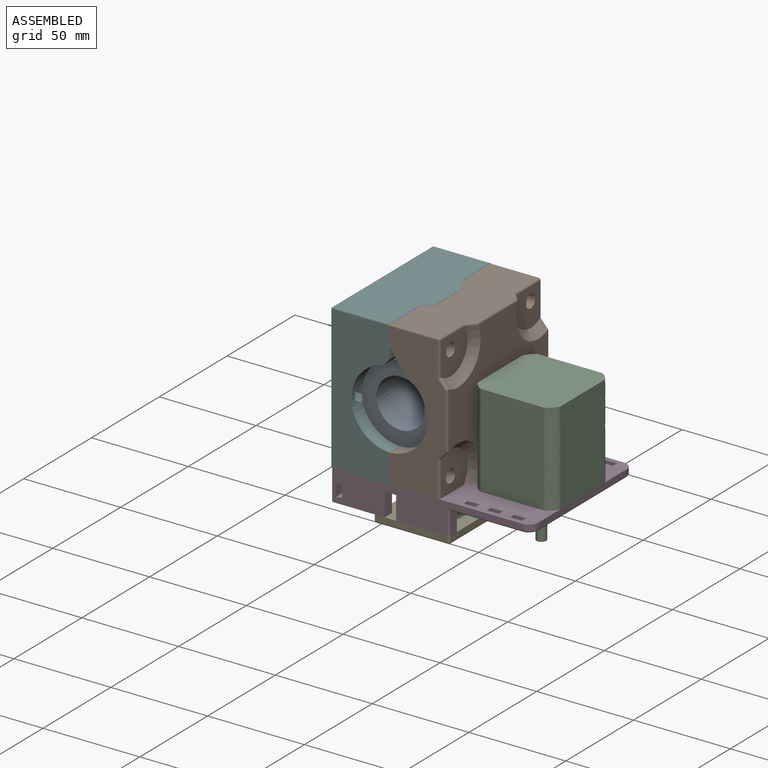
[diagram: assembled view]
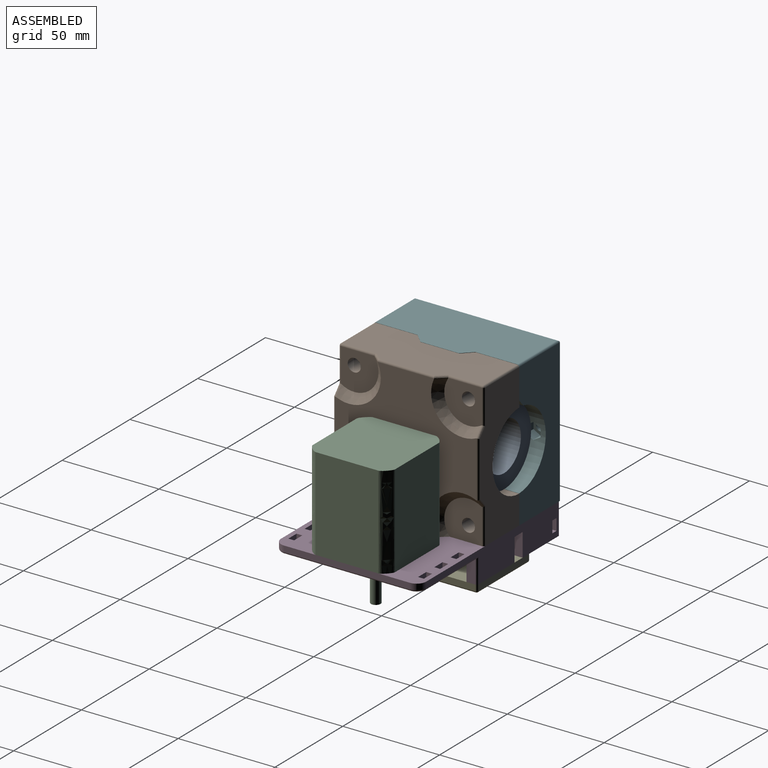
[diagram: assembled view, second angle]
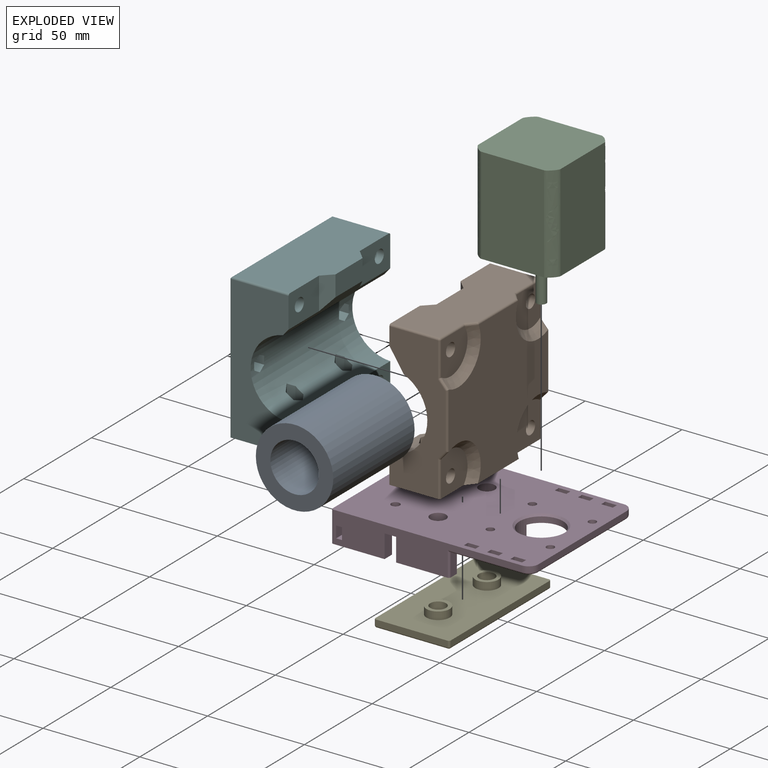
[diagram: exploded view]
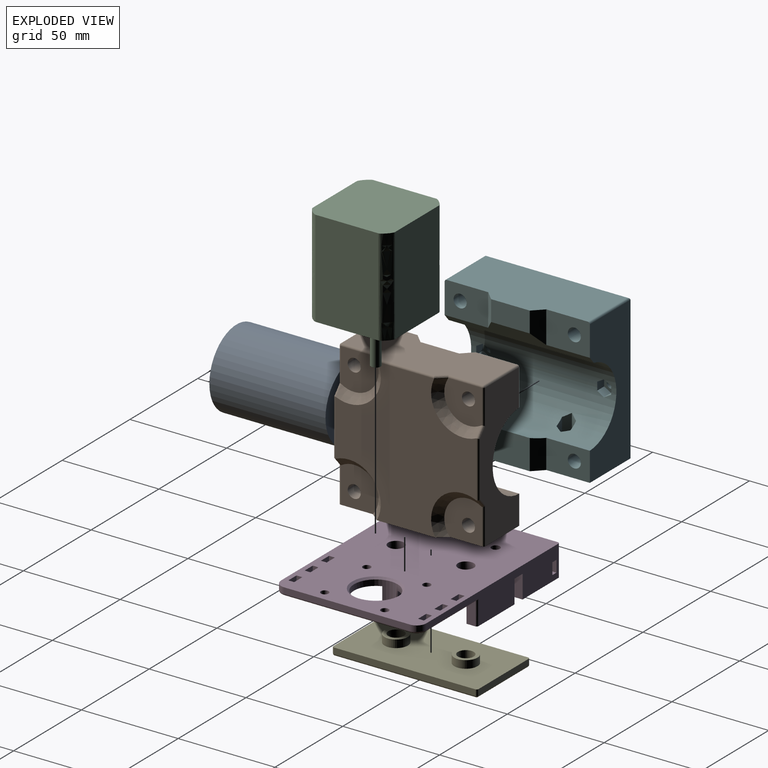
[diagram: exploded view, second angle]
ASSEMBLY  parts=6 mates=5
PART A: 4 faces, bbox 40x60x40 mm
  f0: cylinder r=12.5mm len=60mm, axis (0,1,0), area 4712.4mm2, adj f2,f3
  f1: cylinder r=20mm len=60mm, axis (0,1,0), area 7539.8mm2, adj f2,f3
  f2: plane 40x40mm, normal (0,-1,0), area 765.8mm2, adj f0,f1
  f3: plane 40x40mm, normal (0,1,0), area 765.8mm2, adj f0,f1
PART B: 64 faces, bbox 78.1x32.8x79.9 mm
  f0: plane 74x29mm, normal (1,0,0), area 1332.1mm2, adj f6,f9,f14,f19,f20,f46,f47,f48
  f1: plane 73x29mm, normal (0,0,1), area 1830.8mm2, adj f7,f9,f10,f13,f18,f41,f51,f54
  f2: cylinder r=3.38mm len=26mm, axis (0,1,0), area 551.9mm2, adj f9,f20,f40
  f3: cylinder r=3.38mm len=26mm, axis (0,1,0), area 551.9mm2, adj f10,f39
  f4: cylinder r=3.38mm len=26mm, axis (0,1,0), area 551.9mm2, adj f14,f38
  f5: cylinder r=3.38mm len=26mm, axis (0,1,0), area 551.9mm2, adj f17,f37
  f6: cylinder r=20.1mm len=75mm, axis (1,0,0), area 3710.7mm2, adj f0,f8,f10,f11,f12,f14,f16,f17
  f7: plane 20x17.73mm, normal (0,-1,0), area 354.5mm2, adj f1,f13,f18,f20
  f8: plane 15.82x5.05mm, normal (-0.71,-0.71,0), area 108mm2, adj f6,f12,f14,f19
  f9: plane 22.5x10.13mm, normal (0,-1,0), area 196.5mm2, adj f0,f1,f2,f13,f20,f51
  f10: plane 22.5x19.81mm, normal (0,-1,0), area 409.6mm2, adj f1,f3,f6,f16,f18,f41
  f11: plane 15.82x5.05mm, normal (0.71,-0.71,0), area 108mm2, adj f6,f12,f17,f19
  f12: plane 20x15.77mm, normal (0,-1,0), area 315.3mm2, adj f6,f8,f11,f19
  f13: plane 17.73x5mm, normal (-0.71,-0.71,0), area 98.5mm2, adj f1,f7,f9,f20
  f14: plane 22.5x15.01mm, normal (0,-1,0), area 301.8mm2, adj f0,f4,f6,f8,f19
  f15: plane 74.02x73.02mm, normal (0,1,0), area 3411.8mm2, adj f19,f42,f43,f44,f45,f47,f48,f49
  f16: plane 74x29mm, normal (-1,0,0), area 1366.2mm2, adj f6,f10,f17,f19,f41,f53,f55,f57
  f17: plane 22.5x15.01mm, normal (0,-1,0), area 301.8mm2, adj f5,f6,f11,f16,f19
  f18: plane 21.59x7.6mm, normal (0.71,-0.71,0), area 146.8mm2, adj f1,f6,f7,f10,f20
  f19: plane 75.42x30.42mm, normal (0,0,-1), area 1858.4mm2, adj f0,f8,f11,f12,f14,f15,f16,f17
  f20: plane 49.14x12.94mm, normal (0,-0.84,-0.55), area 427.3mm2, adj f0,f2,f6,f7,f9,f13,f18
  f21: plane 14.77x8.08mm, normal (1,0,0), area 93.1mm2, adj f6,f22,f26,f27
  f22: plane 9.34x7.09mm, normal (0.5,0.87,0), area 69.9mm2, adj f6,f21,f23,f27
  f23: plane 9.34x7.09mm, normal (-0.5,0.87,0), area 69.9mm2, adj f6,f22,f24,f27
  f24: plane 14.77x8.08mm, normal (-1,0,0), area 93.1mm2, adj f6,f23,f25,f27
  f25: plane 23.02x8.24mm, normal (-0.5,-0.87,0), area 143.3mm2, adj f6,f24,f26,f27
  f26: plane 23.02x8.24mm, normal (0.5,-0.87,0), area 143.3mm2, adj f6,f21,f25,f27
  f27: plane 16.17x14mm, normal (0,0,1), area 116.9mm2, adj f21,f22,f23,f24,f25,f26,f36
  f28: plane 9.34x7.09mm, normal (0.5,0.87,0), area 69.9mm2, adj f6,f29,f33,f34
  f29: plane 9.34x7.09mm, normal (-0.5,0.87,0), area 69.9mm2, adj f6,f28,f30,f34
  f30: plane 14.77x8.08mm, normal (-1,0,0), area 93.1mm2, adj f6,f29,f31,f34
  f31: plane 23.02x8.24mm, normal (-0.5,-0.87,0), area 143.3mm2, adj f6,f30,f32,f34
  f32: plane 23.02x8.24mm, normal (0.5,-0.87,0), area 143.3mm2, adj f6,f31,f33,f34
  f33: plane 14.77x8.08mm, normal (1,0,0), area 93.1mm2, adj f6,f28,f32,f34
  f34: plane 16.17x14mm, normal (0,0,1), area 116.9mm2, adj f28,f29,f30,f31,f32,f33,f35
  f35: cylinder r=4.1mm len=8.2mm, axis (0,0,1), area 180.3mm2, adj f19,f34
  f36: cylinder r=4.1mm len=8.2mm, axis (0,0,1), area 180.3mm2, adj f19,f27
  f37: plane 20.54x19.54mm, normal (0,1,0), area 318.2mm2, adj f5,f19,f42,f53,f55
  f38: plane 20.54x19.54mm, normal (0,1,0), area 318.2mm2, adj f4,f19,f45,f46,f47
  f39: plane 19.54x19.54mm, normal (0,1,0), area 301.3mm2, adj f3,f43,f59,f60,f61,f62
  f40: plane 19.54x19.54mm, normal (0,1,0), area 301.3mm2, adj f2,f44,f49,f50,f54,f56
  f41: cylinder r=1mm len=25mm, axis (0,1,0), area 39.3mm2, adj f1,f10,f16,f63
  f42: cone r=12.5mm half-angle=45deg, axis (0,1,0), area 217.6mm2, adj f15,f19,f37,f55
  f43: cone r=12.5mm half-angle=45deg, axis (0,1,0), area 208.5mm2, adj f15,f39,f59,f60
  f44: cone r=12.5mm half-angle=45deg, axis (0,1,0), area 208.5mm2, adj f15,f40,f49,f56
  f45: cone r=12.5mm half-angle=45deg, axis (0,1,0), area 217.6mm2, adj f15,f19,f38,f47
  f46: cylinder r=1mm len=18.85mm, axis (0,0,-1), area 29.3mm2, adj f0,f19,f38,f47
  f47: bspline ~7.43x6.69mm, area 11.5mm2, adj f0,f15,f38,f45,f46,f48
  f48: cylinder r=1mm len=28.98mm, axis (0,0,-1), area 44.9mm2, adj f0,f15,f47,f49
  f49: bspline ~7.43x6.69mm, area 11.5mm2, adj f0,f15,f40,f44,f48,f50
  f50: cylinder r=1mm len=17.85mm, axis (0,0,-1), area 27.8mm2, adj f0,f40,f49,f52
  f51: cylinder r=1mm len=25mm, axis (0,-1,0), area 39.3mm2, adj f0,f1,f9,f52
  f52: sphere r=1mm, area 1mm2, adj f50,f51,f54
  f53: cylinder r=1mm len=18.85mm, axis (0,0,1), area 29.3mm2, adj f16,f19,f37,f55
  f54: cylinder r=1mm len=17.85mm, axis (1,0,0), area 27.8mm2, adj f1,f40,f52,f56
  f55: bspline ~7.43x6.69mm, area 11.5mm2, adj f15,f16,f37,f42,f53,f57
  f56: bspline ~7.43x6.69mm, area 11.5mm2, adj f1,f15,f40,f44,f54,f58
  f57: cylinder r=1mm len=28.98mm, axis (0,0,1), area 44.9mm2, adj f15,f16,f55,f59
  f58: cylinder r=1mm len=28.98mm, axis (1,0,0), area 44.9mm2, adj f1,f15,f56,f60
  f59: bspline ~7.43x6.69mm, area 11.5mm2, adj f15,f16,f39,f43,f57,f61
  f60: bspline ~7.43x6.69mm, area 11.5mm2, adj f1,f15,f39,f43,f58,f62
  f61: cylinder r=1mm len=17.85mm, axis (0,0,1), area 27.8mm2, adj f16,f39,f59,f63
  f62: cylinder r=1mm len=17.85mm, axis (1,0,0), area 27.8mm2, adj f1,f39,f60,f63
  f63: sphere r=1mm, area 1.6mm2, adj f41,f61,f62
PART C: 22 faces, bbox 43.8x43.8x77.8 mm
  f0: plane 50x32.5mm, normal (0,1,0), area 1625mm2, adj f4,f5,f6,f9
  f1: plane 50x32.5mm, normal (-1,0,0), area 1625mm2, adj f4,f5,f6,f7
  f2: plane 50x32.5mm, normal (0,-1,0), area 1625mm2, adj f4,f5,f7,f8
  f3: plane 50x32.5mm, normal (1,0,0), area 1625mm2, adj f4,f5,f8,f9
  f4: plane 43.77x43.77mm, normal (0,0,1), area 1370mm2, adj f0,f1,f2,f3,f6,f7,f8,f9
  f5: plane 43.77x43.77mm, normal (0,0,-1), area 1769.8mm2, adj f0,f1,f2,f3,f6,f7,f8,f9
  f6: bspline ~55x5mm, area 366mm2, adj f0,f1,f4,f5
  f7: bspline ~55x5mm, area 366mm2, adj f1,f2,f4,f5
  f8: bspline ~55x5mm, area 366mm2, adj f2,f3,f4,f5
  f9: bspline ~55x5mm, area 366mm2, adj f0,f3,f4,f5
  f10: cylinder r=11mm len=22mm, axis (0,0,-1), area 138.2mm2, adj f4,f11
  f11: plane 22x22mm, normal (0,0,1), area 360.5mm2, adj f10,f12
  f12: cylinder r=2.5mm len=22mm, axis (0,0,-1), area 345.6mm2, adj f11,f13
  f13: plane 5x5mm, normal (0,0,1), area 19.6mm2, adj f12
  f14: cylinder r=1.25mm len=6.5mm, axis (0,0,1), area 51.1mm2, adj f4,f15
  f15: cone r=0mm half-angle=59deg, axis (0,0,1), area 5.7mm2, adj f14
  f16: cylinder r=1.25mm len=6.5mm, axis (0,0,1), area 51.1mm2, adj f4,f17
  f17: cone r=0mm half-angle=59deg, axis (0,0,1), area 5.7mm2, adj f16
  f18: cylinder r=1.25mm len=6.5mm, axis (0,0,1), area 51.1mm2, adj f4,f19
  f19: cone r=0mm half-angle=59deg, axis (0,0,1), area 5.7mm2, adj f18
  f20: cylinder r=1.25mm len=6.5mm, axis (0,0,1), area 51.1mm2, adj f4,f21
  f21: cone r=0mm half-angle=59deg, axis (0,0,1), area 5.7mm2, adj f20
PART D: 84 faces, bbox 75.8x103.9x16 mm
  f0: plane 102.5x75mm, normal (0,0,-1), area 5610.2mm2, adj f1,f2,f3,f4,f5,f6,f7,f8
  f1: plane 97.5x16mm, normal (1,0,0), area 969.5mm2, adj f0,f36,f45,f46,f51,f53,f62,f63
  f2: plane 73x16mm, normal (0,-1,0), area 496mm2, adj f0,f36,f41,f42,f43,f44,f46,f48
  f3: plane 97.5x16mm, normal (-1,0,0), area 969.5mm2, adj f0,f36,f47,f49,f56,f57,f58,f59
  f4: plane 4x3mm, normal (0,-1,0), area 12mm2, adj f0,f5,f24,f36
  f5: plane 6x4mm, normal (1,0,0), area 24mm2, adj f0,f4,f6,f36
  f6: plane 4x3mm, normal (0,1,0), area 12mm2, adj f0,f5,f24,f36
  f7: plane 6x4mm, normal (1,0,0), area 24mm2, adj f0,f8,f25,f36
  f8: plane 4x3mm, normal (0,1,0), area 12mm2, adj f0,f7,f9,f36
  f9: plane 6x4mm, normal (-1,0,0), area 24mm2, adj f0,f8,f25,f36
  f10: plane 6x4mm, normal (1,0,0), area 24mm2, adj f0,f11,f26,f36
  f11: plane 4x3mm, normal (0,1,0), area 12mm2, adj f0,f10,f12,f36
  f12: plane 6x4mm, normal (-1,0,0), area 24mm2, adj f0,f11,f26,f36
  f13: plane 6x4mm, normal (1,0,0), area 24mm2, adj f0,f14,f27,f36
  f14: plane 4x3mm, normal (0,1,0), area 12mm2, adj f0,f13,f15,f36
  f15: plane 6x4mm, normal (-1,0,0), area 24mm2, adj f0,f14,f27,f36
  f16: plane 6x4mm, normal (1,0,0), area 24mm2, adj f0,f17,f28,f36
  f17: plane 4x3mm, normal (0,1,0), area 12mm2, adj f0,f16,f18,f36
  f18: plane 6x4mm, normal (-1,0,0), area 24mm2, adj f0,f17,f28,f36
  f19: plane 6x4mm, normal (1,0,0), area 24mm2, adj f0,f20,f29,f36
  f20: plane 4x3mm, normal (0,1,0), area 12mm2, adj f0,f19,f21,f36
  f21: plane 6x4mm, normal (-1,0,0), area 24mm2, adj f0,f20,f29,f36
  f22: cylinder r=4.1mm len=8.2mm, axis (0,0,1), area 128.8mm2, adj f36,f40
  f23: plane 65x3mm, normal (0,1,0), area 195mm2, adj f36,f70,f71,f75
  f24: plane 6x4mm, normal (-1,0,0), area 24mm2, adj f0,f4,f6,f36
  f25: plane 4x3mm, normal (0,-1,0), area 12mm2, adj f0,f7,f9,f36
  f26: plane 4x3mm, normal (0,-1,0), area 12mm2, adj f0,f10,f12,f36
  f27: plane 4x3mm, normal (0,-1,0), area 12mm2, adj f0,f13,f15,f36
  f28: plane 4x3mm, normal (0,-1,0), area 12mm2, adj f0,f16,f18,f36
  f29: plane 4x3mm, normal (0,-1,0), area 12mm2, adj f0,f19,f21,f36
  f30: cylinder r=2mm len=4mm, axis (0,0,1), area 50.3mm2, adj f0,f36
  f31: cylinder r=2mm len=4mm, axis (0,0,1), area 50.3mm2, adj f0,f36
  f32: cylinder r=2mm len=4mm, axis (0,0,1), area 50.3mm2, adj f0,f36
  f33: cylinder r=2mm len=4mm, axis (0,0,1), area 50.3mm2, adj f0,f36
  f34: cylinder r=11.25mm len=22.5mm, axis (0,0,1), area 310.2mm2, adj f0,f41,f42,f43,f83
  f35: cylinder r=4.1mm len=8.2mm, axis (0,0,1), area 128.8mm2, adj f36,f38
  f36: plane 103.5x75mm, normal (0,0,1), area 6985.6mm2, adj f1,f2,f3,f4,f5,f6,f7,f8
  f37: cylinder r=6mm len=12mm, axis (0,0,1), area 37.7mm2, adj f0,f38
  f38: plane 12x12mm, normal (0,0,-1), area 60.3mm2, adj f35,f37
  f39: cylinder r=6mm len=12mm, axis (0,0,1), area 37.7mm2, adj f0,f40
  f40: plane 12x12mm, normal (0,0,-1), area 60.3mm2, adj f22,f39
  f41: plane 71.74x12mm, normal (-1,0,0), area 842.8mm2, adj f0,f2,f34,f43,f66,f67,f68,f69
  f42: plane 71.74x12mm, normal (1,0,0), area 842.8mm2, adj f0,f2,f34,f43,f66,f67,f68,f69
  f43: plane 71.74x8mm, normal (0,0,-1), area 569.9mm2, adj f2,f34,f41,f42
  f44: plane 27.5x12mm, normal (-1,0,0), area 312mm2, adj f0,f2,f45,f46,f62,f63,f64,f65
  f45: plane 12x5.5mm, normal (0,1,0), area 66mm2, adj f0,f1,f44,f46
  f46: plane 27.5x5.5mm, normal (0,0,-1), area 151mm2, adj f1,f2,f44,f45,f80
  f47: plane 12x5.5mm, normal (0,1,0), area 66mm2, adj f0,f3,f48,f49
  f48: plane 27.5x12mm, normal (1,0,0), area 312mm2, adj f0,f2,f47,f49,f58,f59,f60,f61
  f49: plane 27.5x5.5mm, normal (0,0,-1), area 151mm2, adj f2,f3,f47,f48,f79
  f50: plane 12x4.5mm, normal (0,1,0), area 54mm2, adj f0,f52,f53,f72
  f51: plane 12x5.5mm, normal (0,-1,0), area 66mm2, adj f0,f1,f52,f53
  f52: plane 27.5x12mm, normal (-1,0,0), area 330mm2, adj f0,f50,f51,f53
  f53: plane 27.5x5.5mm, normal (0,0,-1), area 151mm2, adj f1,f50,f51,f52,f72
  f54: plane 12x4.5mm, normal (0,1,0), area 54mm2, adj f0,f55,f57,f76
  f55: plane 27.5x12mm, normal (1,0,0), area 330mm2, adj f0,f54,f56,f57
  f56: plane 12x5.5mm, normal (0,-1,0), area 66mm2, adj f0,f3,f55,f57
  f57: plane 27.5x5.5mm, normal (0,0,-1), area 151mm2, adj f3,f54,f55,f56,f76
  f58: plane 5.5x3mm, normal (0,0,-1), area 16.5mm2, adj f3,f48,f59,f61
  f59: plane 6x5.5mm, normal (0,1,0), area 33mm2, adj f3,f48,f58,f60
  f60: plane 5.5x3mm, normal (0,0,1), area 16.5mm2, adj f3,f48,f59,f61
  f61: plane 6x5.5mm, normal (0,-1,0), area 33mm2, adj f3,f48,f58,f60
  f62: plane 5.5x3mm, normal (0,0,-1), area 16.5mm2, adj f1,f44,f63,f65
  f63: plane 6x5.5mm, normal (0,1,0), area 33mm2, adj f1,f44,f62,f64
  f64: plane 5.5x3mm, normal (0,0,1), area 16.5mm2, adj f1,f44,f63,f65
  f65: plane 6x5.5mm, normal (0,-1,0), area 33mm2, adj f1,f44,f62,f64
  f66: plane 8x6mm, normal (0,-1,0), area 48mm2, adj f41,f42,f67,f69
  f67: plane 8x3mm, normal (0,0,1), area 24mm2, adj f41,f42,f66,f68
  f68: plane 8x6mm, normal (0,1,0), area 48mm2, adj f41,f42,f67,f69
  f69: plane 8x3mm, normal (0,0,-1), area 24mm2, adj f41,f42,f66,f68
  f70: cylinder r=5mm len=5mm, axis (0,0,-1), area 23.6mm2, adj f3,f23,f36,f77
  f71: cylinder r=5mm len=5mm, axis (0,0,1), area 23.6mm2, adj f1,f23,f36,f74
  f72: cylinder r=1mm len=13mm, axis (0,0,1), area 19.4mm2, adj f1,f50,f53,f73
  f73: cylinder r=1mm len=38.5mm, axis (0,1,0), area 59.5mm2, adj f0,f1,f72,f74
  f74: torus R=4mm, axis (0,0,-1), area 11.4mm2, adj f0,f71,f73,f75
  f75: cylinder r=1mm len=65mm, axis (-1,0,0), area 102.1mm2, adj f0,f23,f74,f77
  f76: cylinder r=1mm len=13mm, axis (0,0,-1), area 19.4mm2, adj f3,f54,f57,f78
  f77: torus R=4mm, axis (0,0,-1), area 11.4mm2, adj f0,f70,f75,f78
  f78: cylinder r=1mm len=38.5mm, axis (0,-1,0), area 59.5mm2, adj f0,f3,f76,f77
  f79: cylinder r=1mm len=16mm, axis (0,0,1), area 25.1mm2, adj f2,f3,f36,f49
  f80: cylinder r=1mm len=16mm, axis (0,0,-1), area 25.1mm2, adj f1,f2,f36,f46
  f81: cylinder r=2.2mm len=4.4mm, axis (0,0,1), area 55.3mm2, adj f0,f36
  f82: cylinder r=2.2mm len=4.4mm, axis (0,0,1), area 55.3mm2, adj f0,f36
  f83: cone r=12.25mm half-angle=45deg, axis (0,0,1), area 104.4mm2, adj f34,f36
PART E: 24 faces, bbox 75x39x8 mm
  f0: plane 37x3mm, normal (1,0,0), area 111mm2, adj f7,f14,f20,f23
  f1: plane 73x3mm, normal (0,-1,0), area 219mm2, adj f7,f17,f21,f23
  f2: plane 37x3mm, normal (-1,0,0), area 111mm2, adj f7,f12,f16,f17
  f3: cylinder r=4.1mm len=8.2mm, axis (0,0,1), area 206.1mm2, adj f6,f11
  f4: plane 73x3mm, normal (0,1,0), area 219mm2, adj f7,f12,f14,f15
  f5: cylinder r=4.1mm len=8.2mm, axis (0,0,1), area 206.1mm2, adj f6,f9
  f6: plane 73x37mm, normal (0,0,-1), area 2595.4mm2, adj f3,f5,f15,f16,f20,f21
  f7: plane 75x39mm, normal (0,0,1), area 2697.9mm2, adj f0,f1,f2,f4,f8,f10,f12,f14
  f8: cylinder r=6mm len=12mm, axis (0,0,-1), area 150.8mm2, adj f7,f9
  f9: plane 12x12mm, normal (0,0,1), area 60.3mm2, adj f5,f8
  f10: cylinder r=6mm len=12mm, axis (0,0,-1), area 150.8mm2, adj f7,f11
  f11: plane 12x12mm, normal (0,0,1), area 60.3mm2, adj f3,f10
  f12: cylinder r=1mm len=3mm, axis (0,0,1), area 4.7mm2, adj f2,f4,f7,f13
  f13: sphere r=1mm, area 1.6mm2, adj f12,f15,f16
  f14: cylinder r=1mm len=3mm, axis (0,0,-1), area 4.7mm2, adj f0,f4,f7,f18
  f15: cylinder r=1mm len=73mm, axis (-1,0,0), area 114.7mm2, adj f4,f6,f13,f18
  f16: cylinder r=1mm len=37mm, axis (0,-1,0), area 58.1mm2, adj f2,f6,f13,f19
  f17: cylinder r=1mm len=3mm, axis (0,0,-1), area 4.7mm2, adj f1,f2,f7,f19
  f18: sphere r=1mm, area 1.6mm2, adj f14,f15,f20
  f19: sphere r=1mm, area 1.6mm2, adj f16,f17,f21
  f20: cylinder r=1mm len=37mm, axis (0,1,0), area 58.1mm2, adj f0,f6,f18,f22
  f21: cylinder r=1mm len=73mm, axis (1,0,0), area 114.7mm2, adj f1,f6,f19,f22
  f22: sphere r=1mm, area 1.6mm2, adj f20,f21,f23
  f23: cylinder r=1mm len=3mm, axis (0,0,1), area 4.7mm2, adj f0,f1,f7,f22
PART F: 84 faces, bbox 75x35x75 mm
  f0: plane 75x74mm, normal (0,-1,0), area 5198.9mm2, adj f11,f12,f19,f21,f22,f38,f56,f57
  f1: cylinder r=3.38mm len=26.5mm, axis (0,1,0), area 562.5mm2, adj f6,f83
  f2: cylinder r=3.38mm len=26.5mm, axis (0,1,0), area 562.5mm2, adj f10,f76
  f3: cylinder r=3.38mm len=26.5mm, axis (0,1,0), area 562.5mm2, adj f13,f62
  f4: cylinder r=3.38mm len=26.5mm, axis (0,1,0), area 562.5mm2, adj f17,f69
  f5: cylinder r=20.1mm len=75mm, axis (1,0,0), area 4366.8mm2, adj f7,f9,f11,f12,f13,f15,f17,f20
  f6: plane 22.5x16.62mm, normal (0,1,0), area 337.8mm2, adj f1,f12,f14,f18,f20,f39
  f7: plane 15.51x5mm, normal (0.71,0.71,0), area 107.1mm2, adj f5,f13,f15,f19
  f8: plane 20x10.68mm, normal (0,1,0), area 213.6mm2, adj f14,f16,f18,f20
  f9: plane 15.51x5mm, normal (-0.71,0.71,0), area 107.1mm2, adj f5,f15,f17,f19
  f10: plane 22.5x16.62mm, normal (0,1,0), area 337.8mm2, adj f2,f11,f16,f18,f20,f37
  f11: plane 74x30mm, normal (-1,0,0), area 1600.9mm2, adj f0,f5,f10,f17,f19,f20,f37
  f12: plane 74x30mm, normal (1,0,0), area 1600.9mm2, adj f0,f5,f6,f13,f19,f20,f39
  f13: plane 22.5x15.01mm, normal (0,1,0), area 301.8mm2, adj f3,f5,f7,f12,f19
  f14: plane 16.62x5mm, normal (0.71,0.71,0), area 96.5mm2, adj f6,f8,f18,f20
  f15: plane 20x15.51mm, normal (0,1,0), area 310.2mm2, adj f5,f7,f9,f19
  f16: plane 16.62x5mm, normal (-0.71,0.71,0), area 96.5mm2, adj f8,f10,f18,f20
  f17: plane 22.5x15.01mm, normal (0,1,0), area 301.8mm2, adj f4,f5,f9,f11,f19
  f18: plane 73x34mm, normal (0,0,1), area 2242mm2, adj f6,f8,f10,f14,f16,f37,f38,f39
  f19: plane 75x35mm, normal (0,0,-1), area 2344.6mm2, adj f0,f7,f9,f11,f12,f13,f15,f17
  f20: plane 75x9.42mm, normal (0,0.77,-0.64), area 534.9mm2, adj f5,f6,f8,f10,f11,f12,f14,f16
  f21: cylinder r=2.25mm len=5.4mm, axis (0,-1,0), area 76.3mm2, adj f0,f36
  f22: cylinder r=2.25mm len=5.4mm, axis (0,-1,0), area 76.3mm2, adj f0,f29
  f23: plane 5.11x4.16mm, normal (1,0,0), area 20.9mm2, adj f5,f24,f27,f29
  f24: plane 5.45x3.61mm, normal (0.5,0,0.87), area 21.8mm2, adj f5,f23,f25,f29
  f25: plane 5.45x3.61mm, normal (-0.5,0,0.87), area 21.8mm2, adj f5,f24,f26,f29
  f26: plane 5.11x4.16mm, normal (-1,0,0), area 20.9mm2, adj f5,f25,f28,f29
  f27: plane 5.45x3.61mm, normal (0.5,0,-0.87), area 21.8mm2, adj f5,f23,f28,f29
  f28: plane 5.45x3.61mm, normal (-0.5,0,-0.87), area 21.8mm2, adj f5,f26,f27,f29
  f29: plane 8.31x7.2mm, normal (0,1,0), area 29mm2, adj f22,f23,f24,f25,f26,f27,f28
  f30: plane 5.45x3.61mm, normal (-0.5,0,-0.87), area 21.8mm2, adj f5,f31,f34,f36
  f31: plane 5.45x3.61mm, normal (0.5,0,-0.87), area 21.8mm2, adj f5,f30,f32,f36
  f32: plane 5.11x4.16mm, normal (1,0,0), area 20.9mm2, adj f5,f31,f33,f36
  f33: plane 5.45x3.61mm, normal (0.5,0,0.87), area 21.8mm2, adj f5,f32,f35,f36
  f34: plane 5.11x4.16mm, normal (-1,0,0), area 20.9mm2, adj f5,f30,f35,f36
  f35: plane 5.45x3.61mm, normal (-0.5,0,0.87), area 21.8mm2, adj f5,f33,f34,f36
  f36: plane 8.31x7.2mm, normal (0,1,0), area 29mm2, adj f21,f30,f31,f32,f33,f34,f35
  f37: cylinder r=1mm len=30mm, axis (0,1,0), area 46.6mm2, adj f10,f11,f18,f38
  f38: cylinder r=1mm len=75mm, axis (-1,0,0), area 116.7mm2, adj f0,f18,f37,f39
  f39: cylinder r=1mm len=30mm, axis (0,-1,0), area 46.6mm2, adj f6,f12,f18,f38
  f40: plane 12.84x4.16mm, normal (-1,0,0), area 47.1mm2, adj f5,f41,f45,f46
  f41: plane 10.09x3.6mm, normal (-0.5,-0.87,0), area 40mm2, adj f5,f40,f42,f46
  f42: plane 10.09x3.6mm, normal (0.5,-0.87,0), area 40mm2, adj f5,f41,f43,f46
  f43: plane 12.84x4.16mm, normal (1,0,0), area 47.1mm2, adj f5,f42,f44,f46
  f44: plane 14.9x3.6mm, normal (0.5,0.87,0), area 57.4mm2, adj f5,f43,f45,f46
  f45: plane 14.9x3.6mm, normal (-0.5,0.87,0), area 57.4mm2, adj f5,f40,f44,f46
  f46: plane 8.31x7.2mm, normal (0,0,1), area 29.7mm2, adj f40,f41,f42,f43,f44,f45,f54
  f47: plane 12.84x4.16mm, normal (-1,0,0), area 47.1mm2, adj f5,f48,f52,f53
  f48: plane 10.09x3.6mm, normal (-0.5,-0.87,0), area 40mm2, adj f5,f47,f49,f53
  f49: plane 10.09x3.6mm, normal (0.5,-0.87,0), area 40mm2, adj f5,f48,f50,f53
  f50: plane 12.84x4.16mm, normal (1,0,0), area 47.1mm2, adj f5,f49,f51,f53
  f51: plane 14.9x3.6mm, normal (0.5,0.87,0), area 57.4mm2, adj f5,f50,f52,f53
  f52: plane 14.9x3.6mm, normal (-0.5,0.87,0), area 57.4mm2, adj f5,f47,f51,f53
  f53: plane 8.31x7.2mm, normal (0,0,1), area 29.7mm2, adj f47,f48,f49,f50,f51,f52,f55
  f54: cylinder r=2.2mm len=7mm, axis (0,0,1), area 96.8mm2, adj f19,f46
  f55: cylinder r=2.2mm len=7mm, axis (0,0,1), area 96.8mm2, adj f19,f53
  f56: plane 5.54x3.5mm, normal (1,0,0), area 19.4mm2, adj f0,f57,f61,f62
  f57: plane 4.8x3.5mm, normal (0.5,0,0.87), area 19.4mm2, adj f0,f56,f58,f62
  f58: plane 4.8x3.5mm, normal (-0.5,0,0.87), area 19.4mm2, adj f0,f57,f59,f62
  f59: plane 5.54x3.5mm, normal (-1,0,0), area 19.4mm2, adj f0,f58,f60,f62
  f60: plane 4.8x3.5mm, normal (-0.5,0,-0.87), area 19.4mm2, adj f0,f59,f61,f62
  f61: plane 4.8x3.5mm, normal (0.5,0,-0.87), area 19.4mm2, adj f0,f56,f60,f62
  f62: plane 11.09x9.6mm, normal (0,-1,0), area 44mm2, adj f3,f56,f57,f58,f59,f60,f61
  f63: plane 4.8x3.5mm, normal (0.5,0,-0.87), area 19.4mm2, adj f0,f64,f68,f69
  f64: plane 5.54x3.5mm, normal (1,0,0), area 19.4mm2, adj f0,f63,f65,f69
  f65: plane 4.8x3.5mm, normal (0.5,0,0.87), area 19.4mm2, adj f0,f64,f66,f69
  f66: plane 4.8x3.5mm, normal (-0.5,0,0.87), area 19.4mm2, adj f0,f65,f67,f69
  f67: plane 5.54x3.5mm, normal (-1,0,0), area 19.4mm2, adj f0,f66,f68,f69
  f68: plane 4.8x3.5mm, normal (-0.5,0,-0.87), area 19.4mm2, adj f0,f63,f67,f69
  f69: plane 11.09x9.6mm, normal (0,-1,0), area 44mm2, adj f4,f63,f64,f65,f66,f67,f68
  f70: plane 5.54x3.5mm, normal (-1,0,0), area 19.4mm2, adj f0,f71,f75,f76
  f71: plane 4.8x3.5mm, normal (-0.5,0,-0.87), area 19.4mm2, adj f0,f70,f72,f76
  f72: plane 4.8x3.5mm, normal (0.5,0,-0.87), area 19.4mm2, adj f0,f71,f73,f76
  f73: plane 5.54x3.5mm, normal (1,0,0), area 19.4mm2, adj f0,f72,f74,f76
  f74: plane 4.8x3.5mm, normal (0.5,0,0.87), area 19.4mm2, adj f0,f73,f75,f76
  f75: plane 4.8x3.5mm, normal (-0.5,0,0.87), area 19.4mm2, adj f0,f70,f74,f76
  f76: plane 11.09x9.6mm, normal (0,-1,0), area 44mm2, adj f2,f70,f71,f72,f73,f74,f75
  f77: plane 4.8x3.5mm, normal (-0.5,0,0.87), area 19.4mm2, adj f0,f78,f82,f83
  f78: plane 5.54x3.5mm, normal (-1,0,0), area 19.4mm2, adj f0,f77,f79,f83
  f79: plane 4.8x3.5mm, normal (-0.5,0,-0.87), area 19.4mm2, adj f0,f78,f80,f83
  f80: plane 4.8x3.5mm, normal (0.5,0,-0.87), area 19.4mm2, adj f0,f79,f81,f83
  f81: plane 5.54x3.5mm, normal (1,0,0), area 19.4mm2, adj f0,f80,f82,f83
  f82: plane 4.8x3.5mm, normal (0.5,0,0.87), area 19.4mm2, adj f0,f77,f81,f83
  f83: plane 11.09x9.6mm, normal (0,-1,0), area 44mm2, adj f1,f77,f78,f79,f80,f81,f82
PLACE A t=(-31.63,-108.85,-132.64)mm
PLACE B rot(axis=(0,0,-1),90deg) t=(-32.63,-153.85,-181.37)mm
PLACE C rot(axis=(1,0,0),180deg) t=(73.07,-195.78,-133.24)mm
PLACE D rot(axis=(0,0,-1),90deg) t=(-31.63,-153.85,-181.24)mm
PLACE E rot(axis=(0,0,-1),90deg) t=(-31.63,-153.85,-181.24)mm
PLACE F rot(axis=(0,0,-1),90deg) t=(-31.63,-153.85,-181.24)mm
MATE fastened D.f36 <-> F.f19  axis (0,0,1) through (-62.13,-153.85,-181.24)mm
MATE fastened C.f10 <-> D.f34  axis (0,0,-1) through (20.12,-153.85,-185.24)mm
MATE fastened F.f5 <-> A.f0  axis (0,-1,0) through (-31.63,-153.85,-146.14)mm
MATE fastened F.f15 <-> B.f12  axis (1,0,0) through (-27.13,-153.85,-173.48)mm
MATE fastened D.f76 <-> E.f12  axis (0,0,-1) through (-2.13,-117.35,-197.24)mm
